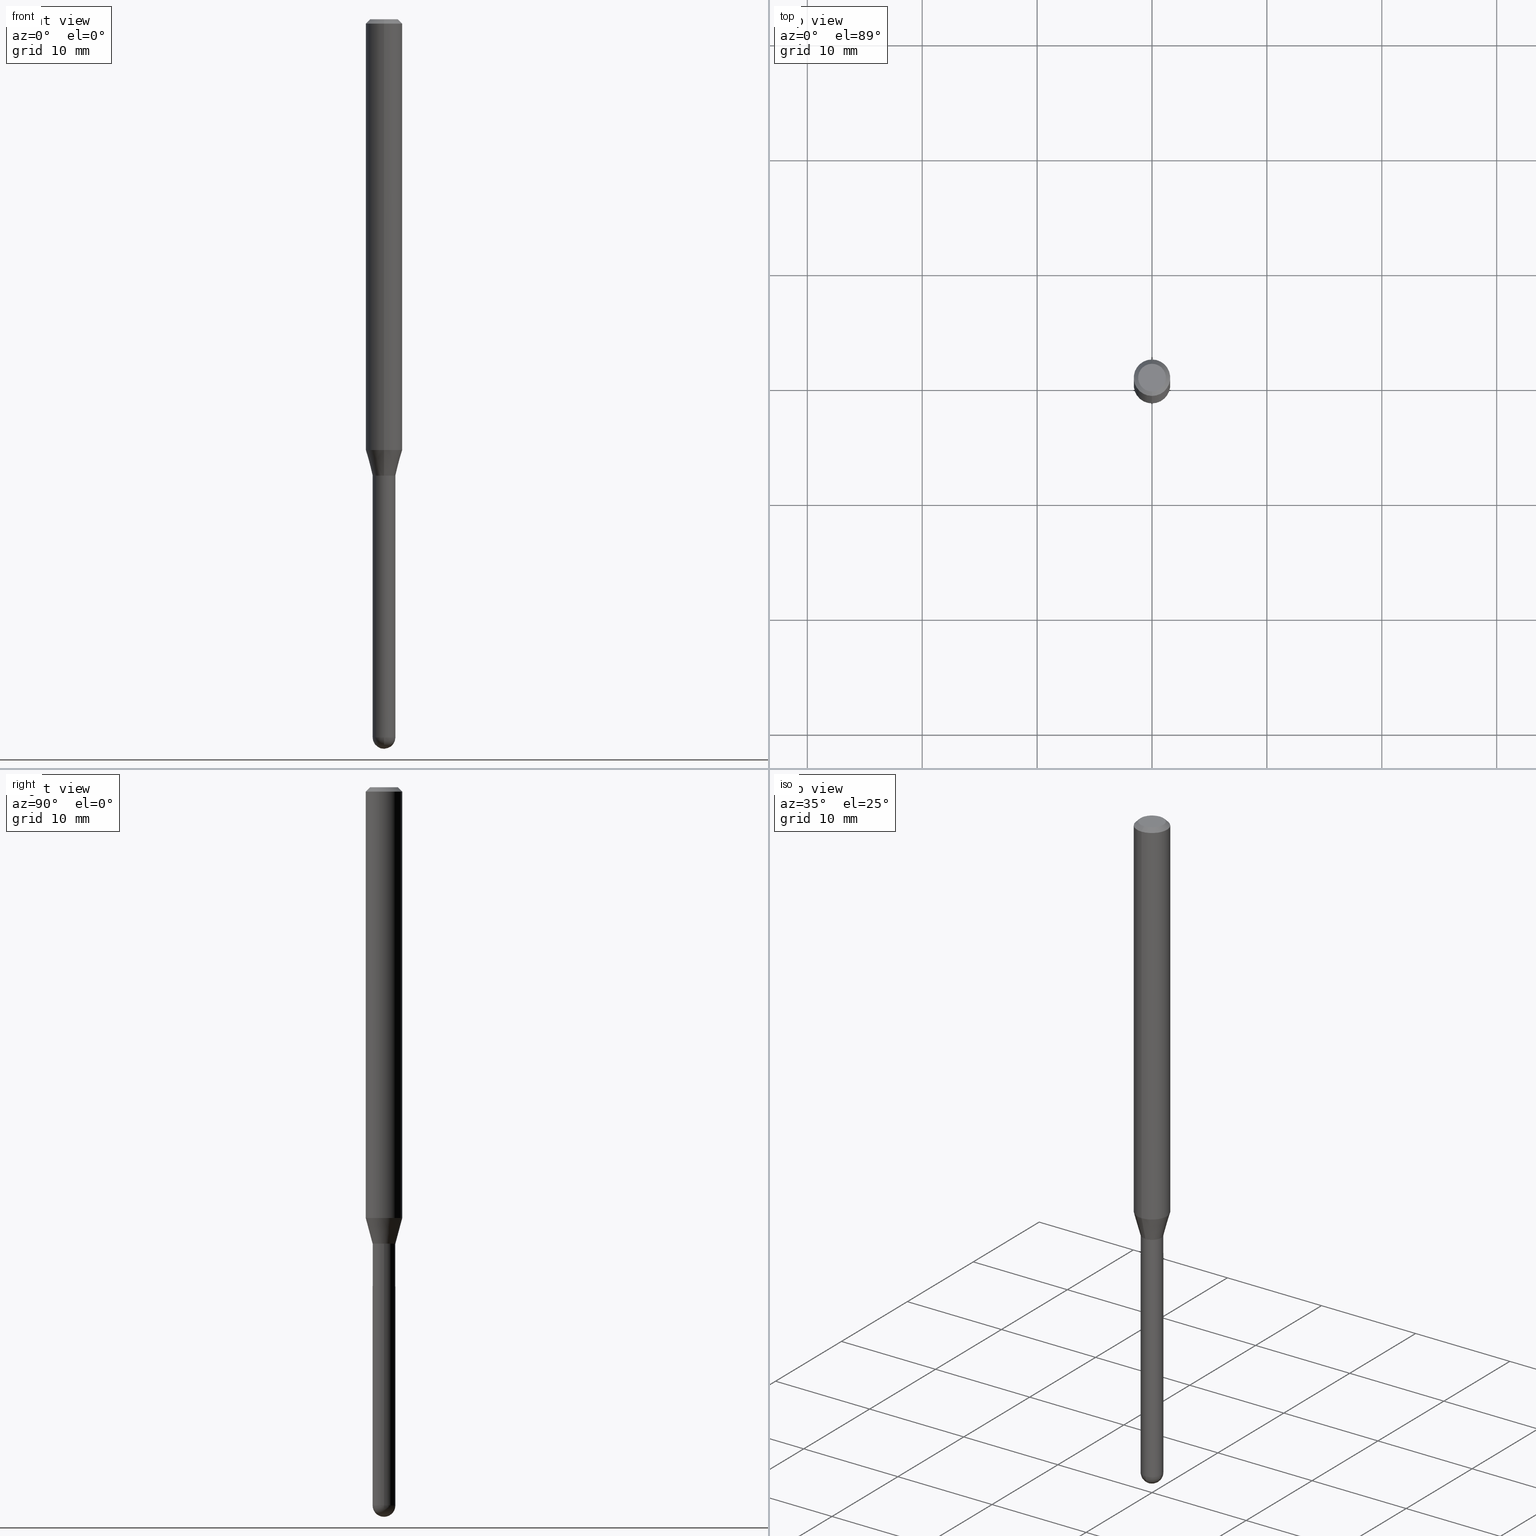
[diagram: canonical four-view strip — front | top / right | iso, engineering-drawing reading convention]
A machine part, canonical four-view strip (front | top / right | iso — engineering-drawing reading convention). The complete STEP part file that produces these views, byte-faithful:
ISO-10303-21;
HEADER;
FILE_DESCRIPTION (( 'STEP AP203' ),
    '1' );
FILE_NAME ('04527.STEP',
    '2024-03-08T20:30:31',
    ( '' ),
    ( '' ),
    'SwSTEP 2.0',
    'SolidWorks 2023',
    '' );
FILE_SCHEMA (( 'CONFIG_CONTROL_DESIGN' ));
ENDSEC;

DATA;
#1 = SHAPE_DEFINITION_REPRESENTATION ( #180, #27 ) ;
#2 = DIRECTION ( 'NONE',  ( -2.445504942116765828E-29, 3.491429590132323224E-15, 1.000000000000000000 ) ) ;
#3 = AXIS2_PLACEMENT_3D ( 'NONE', #323, #477, #251 ) ;
#4 = AXIS2_PLACEMENT_3D ( 'NONE', #241, #399, #414 ) ;
#5 = DATE_TIME_ROLE ( 'classification_date' ) ;
#6 = DIRECTION ( 'NONE',  ( 6.982962677686265922E-15, 1.000000000000000000, -3.483106191921935554E-15 ) ) ;
#7 = CC_DESIGN_PERSON_AND_ORGANIZATION_ASSIGNMENT ( #432, #200, ( #288 ) ) ;
#8 = VERTEX_POINT ( 'NONE', #229 ) ;
#9 = LINE ( 'NONE', #422, #312 ) ;
#10 = ORIENTED_EDGE ( 'NONE', *, *, #505, .F. ) ;
#11 = CIRCLE ( 'NONE', #407, 0.06250000000000000000 ) ;
#12 = VECTOR ( 'NONE', #408, 39.37007874015748854 ) ;
#13 = DIRECTION ( 'NONE',  ( 6.982962677686265922E-15, 1.000000000000000000, -3.483106191921935554E-15 ) ) ;
#14 = ORIENTED_EDGE ( 'NONE', *, *, #166, .F. ) ;
#15 = PLANE ( 'NONE',  #340 ) ;
#16 = FACE_OUTER_BOUND ( 'NONE', #375, .T. ) ;
#17 = VERTEX_POINT ( 'NONE', #283 ) ;
#18 = DIRECTION ( 'NONE',  ( -2.445468806185136597E-29, 3.491481338843145583E-15, 1.000000000000000000 ) ) ;
#19 = LINE ( 'NONE', #212, #290 ) ;
#20 = VERTEX_POINT ( 'NONE', #435 ) ;
#21 = CARTESIAN_POINT ( 'NONE',  ( -4.287811248607203282E-16, -0.06250000000000005551, -0.01499999999999984852 ) ) ;
#22 = DIRECTION ( 'NONE',  ( 1.000000000000000000, -6.982962677686265922E-15, 4.883557194083112340E-29 ) ) ;
#23 = LOCAL_TIME ( 15, 30, 31.00000000000000000, #349 ) ;
#24 = EDGE_LOOP ( 'NONE', ( #219, #339, #179, #371 ) ) ;
#25 = ADVANCED_FACE ( 'NONE', ( #398 ), #196, .T. ) ;
#26 = CARTESIAN_POINT ( 'NONE',  ( 2.771116669464776770E-16, 0.03899999999999459455, -1.563500000000000112 ) ) ;
#27 = ADVANCED_BREP_SHAPE_REPRESENTATION ( '04527', ( #205, #203, #43 ), #125 ) ;
#28 = DIRECTION ( 'NONE',  ( 1.000000000000000000, -6.982962677686283277E-15, 0.000000000000000000 ) ) ;
#29 = LINE ( 'NONE', #465, #324 ) ;
#30 = APPLICATION_PROTOCOL_DEFINITION ( 'international standard', 'config_control_design', 1994, #256 ) ;
#31 = CARTESIAN_POINT ( 'NONE',  ( 0.03899999999999999994, -5.733012358380444123E-15, -1.564000000000000057 ) ) ;
#32 = FACE_OUTER_BOUND ( 'NONE', #234, .T. ) ;
#33 = CC_DESIGN_PERSON_AND_ORGANIZATION_ASSIGNMENT ( #441, #46, ( #154 ) ) ;
#34 = DIRECTION ( 'NONE',  ( -2.445504942116765828E-29, 3.491429590132323224E-15, 1.000000000000000000 ) ) ;
#35 = ORIENTED_EDGE ( 'NONE', *, *, #95, .T. ) ;
#36 = VECTOR ( 'NONE', #302, 39.37007874015748143 ) ;
#37 = VECTOR ( 'NONE', #452, 39.37007874015748143 ) ;
#38 = DIRECTION ( 'NONE',  ( -6.982962677686266711E-15, -1.000000000000000000, 3.491429590132324013E-15 ) ) ;
#39 =( NAMED_UNIT ( * ) PLANE_ANGLE_UNIT ( ) SI_UNIT ( $, .RADIAN. ) );
#40 = ORIENTED_EDGE ( 'NONE', *, *, #217, .T. ) ;
#41 = EDGE_CURVE ( 'NONE', #315, #66, #311, .T. ) ;
#42 = CC_DESIGN_DATE_AND_TIME_ASSIGNMENT ( #245, #44, ( #288 ) ) ;
#43 = AXIS2_PLACEMENT_3D ( 'NONE', #357, #187, #508 ) ;
#44 = DATE_TIME_ROLE ( 'creation_date' ) ;
#45 = CALENDAR_DATE ( 2024, 8, 3 ) ;
#46 = PERSON_AND_ORGANIZATION_ROLE ( 'creator' ) ;
#47 = APPROVAL ( #252, 'UNSPECIFIED' ) ;
#48 = DIRECTION ( 'NONE',  ( -2.445468806185136877E-29, 3.491481338843145188E-15, 1.000000000000000000 ) ) ;
#49 = VECTOR ( 'NONE', #48, 39.37007874015748143 ) ;
#50 = ORIENTED_EDGE ( 'NONE', *, *, #224, .F. ) ;
#51 = ADVANCED_FACE ( 'NONE', ( #306 ), #474, .T. ) ;
#52 = CARTESIAN_POINT ( 'NONE',  ( 6.014963583493821915E-29, -8.597311697409657438E-15, -2.461000000000000298 ) ) ;
#53 = ORIENTED_EDGE ( 'NONE', *, *, #360, .T. ) ;
#54 = DIRECTION ( 'NONE',  ( 1.000000000000000000, -6.982962677686265922E-15, 4.876176775795935793E-29 ) ) ;
#55 = ADVANCED_FACE ( 'NONE', ( #163 ), #98, .F. ) ;
#56 = AXIS2_PLACEMENT_3D ( 'NONE', #499, #310, #80 ) ;
#57 = CC_DESIGN_APPROVAL ( #332, ( #288 ) ) ;
#58 = CARTESIAN_POINT ( 'NONE',  ( 2.771116669464747681E-16, 0.03899999999999418515, -1.564000000000000057 ) ) ;
#59 = EDGE_LOOP ( 'NONE', ( #423, #439, #453, #292, #76 ) ) ;
#60 = FACE_OUTER_BOUND ( 'NONE', #394, .T. ) ;
#61 = LINE ( 'NONE', #483, #12 ) ;
#62 = VERTEX_POINT ( 'NONE', #261 ) ;
#63 = DIRECTION ( 'NONE',  ( -2.445504942116765828E-29, 3.491429590132323224E-15, 1.000000000000000000 ) ) ;
#64 = CARTESIAN_POINT ( 'NONE',  ( 6.014963583493821915E-29, -8.597311697409657438E-15, -2.461000000000000298 ) ) ;
#65 = EDGE_CURVE ( 'NONE', #66, #315, #254, .T. ) ;
#66 = VERTEX_POINT ( 'NONE', #413 ) ;
#67 = DIRECTION ( 'NONE',  ( -6.982962677686265922E-15, -1.000000000000000000, 0.000000000000000000 ) ) ;
#68 =( NAMED_UNIT ( * ) SI_UNIT ( $, .STERADIAN. ) SOLID_ANGLE_UNIT ( ) );
#69 = VERTEX_POINT ( 'NONE', #185 ) ;
#70 = CARTESIAN_POINT ( 'NONE',  ( 4.440892098500625669E-16, 0.06250000000000000000, -2.182143493832702015E-16 ) ) ;
#71 = LINE ( 'NONE', #466, #171 ) ;
#72 = EDGE_LOOP ( 'NONE', ( #93, #383, #14, #213 ) ) ;
#73 = DIRECTION ( 'NONE',  ( -6.982962677686266711E-15, -1.000000000000000000, 0.000000000000000000 ) ) ;
#74 = CARTESIAN_POINT ( 'NONE',  ( 6.112004441198941993E-29, -8.731091408366202985E-15, -2.500000000000000000 ) ) ;
#75 = APPROVAL_DATE_TIME ( #469, #332 ) ;
#76 = ORIENTED_EDGE ( 'NONE', *, *, #65, .F. ) ;
#77 = CIRCLE ( 'NONE', #502, 0.04749999999999999362 ) ;
#78 = CIRCLE ( 'NONE', #418, 0.03899999999999999994 ) ;
#79 = CARTESIAN_POINT ( 'NONE',  ( 3.824769729470621710E-29, -5.460595878966953884E-15, -1.564000000000000057 ) ) ;
#80 = DIRECTION ( 'NONE',  ( -6.982962677686265922E-15, -1.000000000000000000, 3.483106191921935554E-15 ) ) ;
#81 = CARTESIAN_POINT ( 'NONE',  ( -2.771116669463784777E-16, -0.03900000000000854172, -2.460999999999999854 ) ) ;
#82 = CALENDAR_DATE ( 2024, 8, 3 ) ;
#83 = CARTESIAN_POINT ( 'NONE',  ( 3.668257413175165207E-31, -5.237144385198507171E-17, -0.01500000000000006710 ) ) ;
#84 = ADVANCED_FACE ( 'NONE', ( #384 ), #102, .T. ) ;
#85 = CIRCLE ( 'NONE', #351, 0.03899999999999999994 ) ;
#86 = CIRCLE ( 'NONE', #285, 0.03899999999999989586 ) ;
#87 = PERSON_AND_ORGANIZATION ( #280, #207 ) ;
#88 = EDGE_CURVE ( 'NONE', #108, #309, #428, .T. ) ;
#89 = PERSON_AND_ORGANIZATION ( #280, #207 ) ;
#90 = APPROVAL_DATE_TIME ( #443, #137 ) ;
#91 = CIRCLE ( 'NONE', #170, 0.03900000000000019423 ) ;
#92 = CC_DESIGN_SECURITY_CLASSIFICATION ( #264, ( #154 ) ) ;
#93 = ORIENTED_EDGE ( 'NONE', *, *, #404, .F. ) ;
#94 = DIRECTION ( 'NONE',  ( -2.445504942116765828E-29, 3.491429590132323224E-15, 1.000000000000000000 ) ) ;
#95 = EDGE_CURVE ( 'NONE', #8, #278, #342, .T. ) ;
#96 = VERTEX_POINT ( 'NONE', #181 ) ;
#97 = CARTESIAN_POINT ( 'NONE',  ( 3.824713212873553776E-29, -5.460676813950680100E-15, -1.564000000000000057 ) ) ;
#98 = CYLINDRICAL_SURFACE ( 'NONE', #3, 0.03899999999999992362 ) ;
#99 = EDGE_LOOP ( 'NONE', ( #211, #172, #379, #504 ) ) ;
#100 = CARTESIAN_POINT ( 'NONE',  ( 4.440892098500983121E-16, 0.06249999999999480971, -1.476296806022133312 ) ) ;
#101 = UNCERTAINTY_MEASURE_WITH_UNIT (LENGTH_MEASURE( 1.000000000000000082E-05 ), #155, 'distance_accuracy_value', 'NONE');
#102 = CONICAL_SURFACE ( 'NONE', #289, 0.03899999999999964606, 0.2617993877991575680 ) ;
#103 = AXIS2_PLACEMENT_3D ( 'NONE', #438, #277, #313 ) ;
#104 = VERTEX_POINT ( 'NONE', #100 ) ;
#105 = CYLINDRICAL_SURFACE ( 'NONE', #415, 0.03899999999999992362 ) ;
#106 = ADVANCED_FACE ( 'NONE', ( #388 ), #15, .F. ) ;
#107 = CARTESIAN_POINT ( 'NONE',  ( 3.610291135158322119E-29, -5.154386352363512854E-15, -1.476296806022132868 ) ) ;
#108 = VERTEX_POINT ( 'NONE', #26 ) ;
#109 = CARTESIAN_POINT ( 'NONE',  ( 3.824769729470621710E-29, -5.460595878966953884E-15, -1.564000000000000057 ) ) ;
#110 = DIMENSIONAL_EXPONENTS ( 1.000000000000000000, 0.000000000000000000, 0.000000000000000000, 0.000000000000000000, 0.000000000000000000, 0.000000000000000000, 0.000000000000000000 ) ;
#111 = FACE_OUTER_BOUND ( 'NONE', #270, .T. ) ;
#112 = DIRECTION ( 'NONE',  ( -2.445504942116765828E-29, 3.491429590132323224E-15, 1.000000000000000000 ) ) ;
#113 = CARTESIAN_POINT ( 'NONE',  ( 3.824769729470621710E-29, -5.460595878966953884E-15, -1.564000000000000057 ) ) ;
#114 = DIRECTION ( 'NONE',  ( -2.445504942116765828E-29, 3.491429590132323224E-15, 1.000000000000000000 ) ) ;
#115 = AXIS2_PLACEMENT_3D ( 'NONE', #83, #361, #6 ) ;
#116 = ORIENTED_EDGE ( 'NONE', *, *, #348, .T. ) ;
#117 = FACE_OUTER_BOUND ( 'NONE', #295, .T. ) ;
#118 = CARTESIAN_POINT ( 'NONE',  ( 6.014963583493821915E-29, -8.597311697409657438E-15, -2.461000000000000298 ) ) ;
#119 = CYLINDRICAL_SURFACE ( 'NONE', #103, 0.03899999999999999994 ) ;
#120 = DIRECTION ( 'NONE',  ( -2.445504942116765828E-29, 3.491429590132323224E-15, 1.000000000000000000 ) ) ;
#121 = ORIENTED_EDGE ( 'NONE', *, *, #224, .T. ) ;
#122 = DIRECTION ( 'NONE',  ( -6.982962677686265922E-15, -1.000000000000000000, 3.491429590132323224E-15 ) ) ;
#123 = ORIENTED_EDGE ( 'NONE', *, *, #352, .T. ) ;
#124 = AXIS2_PLACEMENT_3D ( 'NONE', #354, #198, #506 ) ;
#125 =( GEOMETRIC_REPRESENTATION_CONTEXT ( 3 ) GLOBAL_UNCERTAINTY_ASSIGNED_CONTEXT ( ( #101 ) ) GLOBAL_UNIT_ASSIGNED_CONTEXT ( ( #155, #39, #68 ) ) REPRESENTATION_CONTEXT ( 'NONE', 'WORKASPACE' ) );
#126 = CYLINDRICAL_SURFACE ( 'NONE', #206, 0.06250000000000000000 ) ;
#127 = PERSON_AND_ORGANIZATION ( #280, #207 ) ;
#128 = ADVANCED_FACE ( 'NONE', ( #347 ), #374, .T. ) ;
#129 = VECTOR ( 'NONE', #143, 39.37007874015748854 ) ;
#130 = COORDINATED_UNIVERSAL_TIME_OFFSET ( 5, 0, .BEHIND. ) ;
#131 = EDGE_LOOP ( 'NONE', ( #333, #327, #433, #369 ) ) ;
#132 = DIRECTION ( 'NONE',  ( -6.982962677686265922E-15, -1.000000000000000000, 3.491429590132323224E-15 ) ) ;
#133 = APPLICATION_CONTEXT ( 'configuration controlled 3d designs of mechanical parts and assemblies' ) ;
#134 = ADVANCED_FACE ( 'NONE', ( #60 ), #105, .F. ) ;
#135 = CLOSED_SHELL ( 'NONE', ( #486, #248, #328, #25, #175 ) ) ;
#136 = CIRCLE ( 'NONE', #199, 0.03899999999999964606 ) ;
#137 = APPROVAL ( #364, 'UNSPECIFIED' ) ;
#138 = DIRECTION ( 'NONE',  ( -7.105427357601000281E-15, -1.000000000000000000, 0.000000000000000000 ) ) ;
#139 = EDGE_LOOP ( 'NONE', ( #184, #460, #410, #158 ) ) ;
#140 = DIRECTION ( 'NONE',  ( -2.445504942116765828E-29, 3.491429590132323224E-15, 1.000000000000000000 ) ) ;
#141 = ORIENTED_EDGE ( 'NONE', *, *, #41, .F. ) ;
#142 = CARTESIAN_POINT ( 'NONE',  ( 0.000000000000000000, 0.000000000000000000, 0.000000000000000000 ) ) ;
#143 = DIRECTION ( 'NONE',  ( 1.839019923739650408E-15, 0.2588190451025319527, 0.9659258262890650926 ) ) ;
#144 = ORIENTED_EDGE ( 'NONE', *, *, #467, .F. ) ;
#145 = CC_DESIGN_PERSON_AND_ORGANIZATION_ASSIGNMENT ( #127, #291, ( #154 ) ) ;
#146 = DIRECTION ( 'NONE',  ( -6.982962677686266711E-15, -1.000000000000000000, 3.491429590132324013E-15 ) ) ;
#147 = AXIS2_PLACEMENT_3D ( 'NONE', #359, #242, #356 ) ;
#148 = ORIENTED_EDGE ( 'NONE', *, *, #326, .T. ) ;
#149 = DIRECTION ( 'NONE',  ( -2.445468806185136597E-29, 3.491481338843145583E-15, 1.000000000000000000 ) ) ;
#150 = CARTESIAN_POINT ( 'NONE',  ( 3.824769729470621149E-29, -5.460595878966953095E-15, -1.563999999999999835 ) ) ;
#151 = PERSON_AND_ORGANIZATION_ROLE ( 'design_owner' ) ;
#152 = DIRECTION ( 'NONE',  ( -6.982962677686265922E-15, -1.000000000000000000, 3.491429590132323224E-15 ) ) ;
#153 = EDGE_CURVE ( 'NONE', #412, #309, #29, .T. ) ;
#154 = PRODUCT_DEFINITION_FORMATION_WITH_SPECIFIED_SOURCE ( 'ANY', '', #168, .NOT_KNOWN. ) ;
#155 =( CONVERSION_BASED_UNIT ( 'INCH', #392 ) LENGTH_UNIT ( ) NAMED_UNIT ( #110 ) );
#156 = ORIENTED_EDGE ( 'NONE', *, *, #317, .T. ) ;
#157 = LINE ( 'NONE', #473, #449 ) ;
#158 = ORIENTED_EDGE ( 'NONE', *, *, #237, .T. ) ;
#159 = DIRECTION ( 'NONE',  ( -6.982962677686265922E-15, -1.000000000000000000, 0.000000000000000000 ) ) ;
#160 = AXIS2_PLACEMENT_3D ( 'NONE', #109, #287, #159 ) ;
#161 = AXIS2_PLACEMENT_3D ( 'NONE', #353, #233, #430 ) ;
#162 = DIRECTION ( 'NONE',  ( 6.982962677686265922E-15, 1.000000000000000000, 0.000000000000000000 ) ) ;
#163 = FACE_OUTER_BOUND ( 'NONE', #139, .T. ) ;
#164 = VECTOR ( 'NONE', #337, 39.37007874015748143 ) ;
#165 = CIRCLE ( 'NONE', #503, 0.03899999999999989586 ) ;
#166 = EDGE_CURVE ( 'NONE', #176, #243, #481, .T. ) ;
#167 = DIRECTION ( 'NONE',  ( -2.445504942116766108E-29, 3.491429590132322830E-15, 1.000000000000000000 ) ) ;
#168 = PRODUCT ( '04527', '04527', '', ( #426 ) ) ;
#169 = ORIENTED_EDGE ( 'NONE', *, *, #348, .F. ) ;
#170 = AXIS2_PLACEMENT_3D ( 'NONE', #362, #246, #286 ) ;
#171 = VECTOR ( 'NONE', #228, 39.37007874015748854 ) ;
#172 = ORIENTED_EDGE ( 'NONE', *, *, #404, .T. ) ;
#173 = DIRECTION ( 'NONE',  ( -6.982962677686265922E-15, -1.000000000000000000, 3.491429590132322830E-15 ) ) ;
#174 = DIRECTION ( 'NONE',  ( -1.000000000000000000, 6.982962677686265922E-15, -4.876176775795935793E-29 ) ) ;
#175 = ADVANCED_FACE ( 'NONE', ( #488 ), #498, .T. ) ;
#176 = VERTEX_POINT ( 'NONE', #429 ) ;
#177 = CARTESIAN_POINT ( 'NONE',  ( 3.606004383982868113E-16, 0.03899999999999418515, -1.564000000000000057 ) ) ;
#178 = DIRECTION ( 'NONE',  ( -1.807323732225379443E-15, -0.2588190451025252359, 0.9659258262890670910 ) ) ;
#179 = ORIENTED_EDGE ( 'NONE', *, *, #360, .F. ) ;
#180 = PRODUCT_DEFINITION_SHAPE ( 'NONE', 'NONE',  #288 ) ;
#181 = CARTESIAN_POINT ( 'NONE',  ( 2.723355444298241737E-16, 0.03899999999999134714, -2.460999999999999854 ) ) ;
#182 = AXIS2_PLACEMENT_3D ( 'NONE', #118, #250, #162 ) ;
#183 = LOCAL_TIME ( 15, 30, 31.00000000000000000, #405 ) ;
#184 = ORIENTED_EDGE ( 'NONE', *, *, #391, .F. ) ;
#185 = CARTESIAN_POINT ( 'NONE',  ( 2.753353101070776221E-16, 0.03849999999999453165, -1.563999999999999835 ) ) ;
#186 = ADVANCED_FACE ( 'NONE', ( #111 ), #401, .T. ) ;
#187 = DIRECTION ( 'NONE',  ( 0.000000000000000000, 0.000000000000000000, 1.000000000000000000 ) ) ;
#188 = ORIENTED_EDGE ( 'NONE', *, *, #88, .F. ) ;
#189 = CARTESIAN_POINT ( 'NONE',  ( 3.610291135158322119E-29, -5.154386352363512854E-15, -1.476296806022132868 ) ) ;
#190 = CONICAL_SURFACE ( 'NONE', #442, 0.03849999999999999256, 0.7853981633980202659 ) ;
#191 = DIRECTION ( 'NONE',  ( -6.982962677686265922E-15, -1.000000000000000000, 0.000000000000000000 ) ) ;
#192 = AXIS2_PLACEMENT_3D ( 'NONE', #500, #495, #305 ) ;
#193 = LOCAL_TIME ( 15, 30, 31.00000000000000000, #253 ) ;
#194 = ORIENTED_EDGE ( 'NONE', *, *, #153, .F. ) ;
#195 = CARTESIAN_POINT ( 'NONE',  ( -2.688440630908829534E-16, -0.03850000000000546041, -1.563999999999999835 ) ) ;
#196 = SPHERICAL_SURFACE ( 'NONE', #124, 0.03899999999999989586 ) ;
#197 = CARTESIAN_POINT ( 'NONE',  ( 1.601871572920228491E-45, -2.286980374876892239E-31, -6.550269211616027646E-17 ) ) ;
#198 = DIRECTION ( 'NONE',  ( -1.000000000000000000, 6.982962677686265922E-15, -4.883557194083112340E-29 ) ) ;
#199 = AXIS2_PLACEMENT_3D ( 'NONE', #79, #34, #191 ) ;
#200 = PERSON_AND_ORGANIZATION_ROLE ( 'creator' ) ;
#201 = EDGE_CURVE ( 'NONE', #20, #96, #85, .T. ) ;
#202 = SECURITY_CLASSIFICATION_LEVEL ( 'unclassified' ) ;
#203 = MANIFOLD_SOLID_BREP ( 'Body-Move/Copy2[2]', #236 ) ;
#204 = CALENDAR_DATE ( 2024, 8, 3 ) ;
#205 = MANIFOLD_SOLID_BREP ( 'Body-Move/Copy2[1]', #135 ) ;
#206 = AXIS2_PLACEMENT_3D ( 'NONE', #403, #2, #132 ) ;
#207 = ORGANIZATION ( 'UNSPECIFIED', 'UNSPECIFIED', '' ) ;
#208 = DATE_AND_TIME ( #82, #343 ) ;
#209 = VERTEX_POINT ( 'NONE', #177 ) ;
#210 = DIRECTION ( 'NONE',  ( -2.445468806185136877E-29, 3.491481338843145188E-15, 1.000000000000000000 ) ) ;
#211 = ORIENTED_EDGE ( 'NONE', *, *, #421, .F. ) ;
#212 = CARTESIAN_POINT ( 'NONE',  ( -2.723355444297236925E-16, -0.03900000000000511391, -1.564000000000000057 ) ) ;
#213 = ORIENTED_EDGE ( 'NONE', *, *, #511, .F. ) ;
#214 = DIRECTION ( 'NONE',  ( -6.982962677686266711E-15, -1.000000000000000000, 0.000000000000000000 ) ) ;
#215 = AXIS2_PLACEMENT_3D ( 'NONE', #464, #380, #454 ) ;
#216 = VECTOR ( 'NONE', #210, 39.37007874015748143 ) ;
#217 = EDGE_CURVE ( 'NONE', #104, #62, #307, .T. ) ;
#218 = CARTESIAN_POINT ( 'NONE',  ( 4.364351673553919652E-16, 0.06249999999999995143, -0.01500000000000028394 ) ) ;
#219 = ORIENTED_EDGE ( 'NONE', *, *, #450, .T. ) ;
#220 = CARTESIAN_POINT ( 'NONE',  ( -0.03899999999999999994, 2.771116669464390721E-16, -1.918384685199413078E-30 ) ) ;
#221 = ORIENTED_EDGE ( 'NONE', *, *, #65, .T. ) ;
#222 = DIRECTION ( 'NONE',  ( -2.445504942116765828E-29, 3.491429590132323224E-15, 1.000000000000000000 ) ) ;
#223 = DIRECTION ( 'NONE',  ( -6.982962677686265922E-15, -1.000000000000000000, 3.483106191921935554E-15 ) ) ;
#224 = EDGE_CURVE ( 'NONE', #225, #8, #77, .T. ) ;
#225 = VERTEX_POINT ( 'NONE', #424 ) ;
#226 = CARTESIAN_POINT ( 'NONE',  ( 3.824769729470621710E-29, -5.460595878966953884E-15, -1.564000000000000057 ) ) ;
#227 = CIRCLE ( 'NONE', #239, 0.04749999999999999362 ) ;
#228 = DIRECTION ( 'NONE',  ( 5.024295867790934632E-15, 0.7071067811869542474, 0.7071067811861405650 ) ) ;
#229 = CARTESIAN_POINT ( 'NONE',  ( -3.773273898774340269E-16, -0.04749999999999999362, 1.003402134151250752E-16 ) ) ;
#230 = EDGE_CURVE ( 'NONE', #448, #69, #458, .T. ) ;
#231 = DIRECTION ( 'NONE',  ( -2.445504942116765828E-29, 3.491429590132323224E-15, 1.000000000000000000 ) ) ;
#232 = ORIENTED_EDGE ( 'NONE', *, *, #41, .T. ) ;
#233 = DIRECTION ( 'NONE',  ( -2.445468806185136597E-29, 3.491481338843145583E-15, 1.000000000000000000 ) ) ;
#234 = EDGE_LOOP ( 'NONE', ( #417, #156, #497, #427 ) ) ;
#235 = FACE_OUTER_BOUND ( 'NONE', #386, .T. ) ;
#236 = CLOSED_SHELL ( 'NONE', ( #134, #186, #51, #446, #84, #128, #265, #440, #320, #106, #314, #55 ) ) ;
#237 = EDGE_CURVE ( 'NONE', #309, #108, #91, .T. ) ;
#238 =( LENGTH_UNIT ( ) NAMED_UNIT ( * ) SI_UNIT ( $, .METRE. ) );
#239 = AXIS2_PLACEMENT_3D ( 'NONE', #197, #114, #38 ) ;
#240 = ORIENTED_EDGE ( 'NONE', *, *, #511, .T. ) ;
#241 = CARTESIAN_POINT ( 'NONE',  ( 3.316907271900976096E-16, 0.04749999999999999362, -1.985942515893654591E-16 ) ) ;
#242 = DIRECTION ( 'NONE',  ( -2.445504942116765828E-29, 3.491429590132323224E-15, 1.000000000000000000 ) ) ;
#243 = VERTEX_POINT ( 'NONE', #81 ) ;
#244 = CARTESIAN_POINT ( 'NONE',  ( -2.723355444297284257E-16, -0.03900000000000579392, -1.563500000000000112 ) ) ;
#245 = DATE_AND_TIME ( #249, #193 ) ;
#246 = DIRECTION ( 'NONE',  ( -2.445504942116765828E-29, 3.491429590132323224E-15, 1.000000000000000000 ) ) ;
#247 = AXIS2_PLACEMENT_3D ( 'NONE', #107, #267, #378 ) ;
#248 = ADVANCED_FACE ( 'NONE', ( #400 ), #509, .T. ) ;
#249 = CALENDAR_DATE ( 2024, 8, 3 ) ;
#250 = DIRECTION ( 'NONE',  ( -1.000000000000000000, 6.982962677686265922E-15, -4.883557194083112340E-29 ) ) ;
#251 = DIRECTION ( 'NONE',  ( -6.982962677686265922E-15, -1.000000000000000000, 3.491429590132323224E-15 ) ) ;
#252 = APPROVAL_STATUS ( 'not_yet_approved' ) ;
#253 = COORDINATED_UNIVERSAL_TIME_OFFSET ( 5, 0, .BEHIND. ) ;
#254 = CIRCLE ( 'NONE', #416, 0.03899999999999999994 ) ;
#255 = EDGE_LOOP ( 'NONE', ( #262, #50, #148, #258 ) ) ;
#256 = APPLICATION_CONTEXT ( 'configuration controlled 3d designs of mechanical parts and assemblies' ) ;
#257 = FACE_OUTER_BOUND ( 'NONE', #299, .T. ) ;
#258 = ORIENTED_EDGE ( 'NONE', *, *, #365, .T. ) ;
#259 = LINE ( 'NONE', #58, #129 ) ;
#260 = ORIENTED_EDGE ( 'NONE', *, *, #88, .T. ) ;
#261 = CARTESIAN_POINT ( 'NONE',  ( 4.440892098500989038E-16, 0.06249999999999995143, -0.01500000000000028394 ) ) ;
#262 = ORIENTED_EDGE ( 'NONE', *, *, #95, .F. ) ;
#263 = DIRECTION ( 'NONE',  ( -6.982962677686266711E-15, -1.000000000000000000, 0.000000000000000000 ) ) ;
#264 = SECURITY_CLASSIFICATION ( '', '', #202 ) ;
#265 = ADVANCED_FACE ( 'NONE', ( #32 ), #126, .T. ) ;
#266 = APPROVAL_PERSON_ORGANIZATION ( #87, #47, #512 ) ;
#267 = DIRECTION ( 'NONE',  ( -2.445504942116765828E-29, 3.491429590132323224E-15, 1.000000000000000000 ) ) ;
#268 = ORIENTED_EDGE ( 'NONE', *, *, #355, .F. ) ;
#269 = DIRECTION ( 'NONE',  ( -2.445468806185136597E-29, 3.491481338843145583E-15, 1.000000000000000000 ) ) ;
#270 = EDGE_LOOP ( 'NONE', ( #336, #494, #484, #169 ) ) ;
#271 = DIRECTION ( 'NONE',  ( 1.000000000000000000, -6.982962677686258033E-15, 0.000000000000000000 ) ) ;
#272 = FACE_OUTER_BOUND ( 'NONE', #297, .T. ) ;
#273 = EDGE_CURVE ( 'NONE', #20, #315, #445, .T. ) ;
#274 = ORIENTED_EDGE ( 'NONE', *, *, #296, .F. ) ;
#275 = DIRECTION ( 'NONE',  ( -2.445504942116765828E-29, 3.491429590132323224E-15, 1.000000000000000000 ) ) ;
#276 = AXIS2_PLACEMENT_3D ( 'NONE', #316, #472, #358 ) ;
#277 = DIRECTION ( 'NONE',  ( -2.445468806185136597E-29, 3.491481338843145583E-15, 1.000000000000000000 ) ) ;
#278 = VERTEX_POINT ( 'NONE', #367 ) ;
#279 = PERSON_AND_ORGANIZATION ( #280, #207 ) ;
#280 = PERSON ( 'UNSPECIFIED', 'UNSPECIFIED', 'UNSPECIFIED', ('UNSPECIFIED'), ('UNSPECIFIED'), ('UNSPECIFIED') ) ;
#281 = EDGE_CURVE ( 'NONE', #209, #412, #387, .T. ) ;
#282 = APPLICATION_PROTOCOL_DEFINITION ( 'international standard', 'config_control_design', 1994, #133 ) ;
#283 = CARTESIAN_POINT ( 'NONE',  ( -4.364351673553557762E-16, -0.06250000000000519029, -1.476296806022132646 ) ) ;
#284 = DIRECTION ( 'NONE',  ( -2.445468806185136597E-29, 3.491481338843145583E-15, 1.000000000000000000 ) ) ;
#285 = AXIS2_PLACEMENT_3D ( 'NONE', #64, #22, #485 ) ;
#286 = DIRECTION ( 'NONE',  ( -6.982962677686266711E-15, -1.000000000000000000, 0.000000000000000000 ) ) ;
#287 = DIRECTION ( 'NONE',  ( -2.445504942116765828E-29, 3.491429590132323224E-15, 1.000000000000000000 ) ) ;
#288 = PRODUCT_DEFINITION ( 'UNKNOWN', '', #154, #420 ) ;
#289 = AXIS2_PLACEMENT_3D ( 'NONE', #113, #377, #67 ) ;
#290 = VECTOR ( 'NONE', #178, 39.37007874015748143 ) ;
#291 = PERSON_AND_ORGANIZATION_ROLE ( 'design_supplier' ) ;
#292 = ORIENTED_EDGE ( 'NONE', *, *, #273, .T. ) ;
#293 = EDGE_CURVE ( 'NONE', #17, #278, #157, .T. ) ;
#294 = CIRCLE ( 'NONE', #56, 0.06250000000000000000 ) ;
#295 = EDGE_LOOP ( 'NONE', ( #10, #490, #116, #188 ) ) ;
#296 = EDGE_CURVE ( 'NONE', #278, #62, #294, .T. ) ;
#297 = EDGE_LOOP ( 'NONE', ( #240, #123, #141, #350, #331 ) ) ;
#298 = CYLINDRICAL_SURFACE ( 'NONE', #459, 0.06250000000000000000 ) ;
#299 = EDGE_LOOP ( 'NONE', ( #232, #221 ) ) ;
#300 = CARTESIAN_POINT ( 'NONE',  ( 6.018298732021620914E-29, -8.592535574892981353E-15, -2.460999999999999854 ) ) ;
#301 = ORIENTED_EDGE ( 'NONE', *, *, #281, .F. ) ;
#302 = DIRECTION ( 'NONE',  ( -4.851104656540964275E-15, -0.7071067811865500152, -0.7071067811865450192 ) ) ;
#303 = CIRCLE ( 'NONE', #510, 0.06250000000000000000 ) ;
#304 = EDGE_LOOP ( 'NONE', ( #144, #35, #444, #455 ) ) ;
#305 = DIRECTION ( 'NONE',  ( -6.982962677686265922E-15, -1.000000000000000000, 0.000000000000000000 ) ) ;
#306 = FACE_OUTER_BOUND ( 'NONE', #304, .T. ) ;
#307 = LINE ( 'NONE', #70, #164 ) ;
#308 = APPROVAL_STATUS ( 'not_yet_approved' ) ;
#309 = VERTEX_POINT ( 'NONE', #244 ) ;
#310 = DIRECTION ( 'NONE',  ( -2.445504942116765828E-29, 3.491429590132323224E-15, 1.000000000000000000 ) ) ;
#311 = CIRCLE ( 'NONE', #276, 0.03899999999999999994 ) ;
#312 = VECTOR ( 'NONE', #167, 39.37007874015748143 ) ;
#313 = DIRECTION ( 'NONE',  ( 1.000000000000000000, -6.982962677686265922E-15, 4.876176775795935793E-29 ) ) ;
#314 = ADVANCED_FACE ( 'NONE', ( #117 ), #190, .T. ) ;
#315 = VERTEX_POINT ( 'NONE', #31 ) ;
#316 = CARTESIAN_POINT ( 'NONE',  ( 3.824713212873553776E-29, -5.460676813950680100E-15, -1.564000000000000057 ) ) ;
#317 = EDGE_CURVE ( 'NONE', #104, #17, #11, .T. ) ;
#318 = AXIS2_PLACEMENT_3D ( 'NONE', #150, #222, #263 ) ;
#319 = CC_DESIGN_APPROVAL ( #47, ( #264 ) ) ;
#320 = ADVANCED_FACE ( 'NONE', ( #235 ), #395, .F. ) ;
#321 = COORDINATED_UNIVERSAL_TIME_OFFSET ( 5, 0, .BEHIND. ) ;
#322 = PERSON_AND_ORGANIZATION ( #280, #207 ) ;
#323 = CARTESIAN_POINT ( 'NONE',  ( 0.000000000000000000, 0.000000000000000000, 0.000000000000000000 ) ) ;
#324 = VECTOR ( 'NONE', #334, 39.37007874015748143 ) ;
#325 = CONICAL_SURFACE ( 'NONE', #366, 0.06250000000000000000, 0.7853981633974483900 ) ;
#326 = EDGE_CURVE ( 'NONE', #225, #62, #462, .T. ) ;
#327 = ORIENTED_EDGE ( 'NONE', *, *, #281, .T. ) ;
#328 = ADVANCED_FACE ( 'NONE', ( #257 ), #385, .F. ) ;
#329 = CARTESIAN_POINT ( 'NONE',  ( -2.723355444297236925E-16, -0.03900000000000511391, -1.564000000000000057 ) ) ;
#330 = AXIS2_PLACEMENT_3D ( 'NONE', #419, #63, #214 ) ;
#331 = ORIENTED_EDGE ( 'NONE', *, *, #201, .T. ) ;
#332 = APPROVAL ( #308, 'UNSPECIFIED' ) ;
#333 = ORIENTED_EDGE ( 'NONE', *, *, #341, .F. ) ;
#334 = DIRECTION ( 'NONE',  ( -2.445504942116766108E-29, 3.491429590132322830E-15, 1.000000000000000000 ) ) ;
#335 = DIRECTION ( 'NONE',  ( -1.000000000000000000, 7.105427357601001070E-15, -4.926315508542082329E-29 ) ) ;
#336 = ORIENTED_EDGE ( 'NONE', *, *, #230, .T. ) ;
#337 = DIRECTION ( 'NONE',  ( -2.445504942116766108E-29, 3.491429590132322830E-15, 1.000000000000000000 ) ) ;
#338 = FACE_OUTER_BOUND ( 'NONE', #255, .T. ) ;
#339 = ORIENTED_EDGE ( 'NONE', *, *, #341, .T. ) ;
#340 = AXIS2_PLACEMENT_3D ( 'NONE', #226, #461, #173 ) ;
#341 = EDGE_CURVE ( 'NONE', #209, #104, #259, .T. ) ;
#342 = LINE ( 'NONE', #21, #36 ) ;
#343 = LOCAL_TIME ( 15, 30, 31.00000000000000000, #130 ) ;
#344 = EDGE_LOOP ( 'NONE', ( #487, #268 ) ) ;
#345 = CARTESIAN_POINT ( 'NONE',  ( 0.000000000000000000, 0.000000000000000000, 0.000000000000000000 ) ) ;
#346 = PERSON_AND_ORGANIZATION ( #280, #207 ) ;
#347 = FACE_OUTER_BOUND ( 'NONE', #131, .T. ) ;
#348 = EDGE_CURVE ( 'NONE', #448, #309, #61, .T. ) ;
#349 = COORDINATED_UNIVERSAL_TIME_OFFSET ( 5, 0, .BEHIND. ) ;
#350 = ORIENTED_EDGE ( 'NONE', *, *, #273, .F. ) ;
#351 = AXIS2_PLACEMENT_3D ( 'NONE', #300, #18, #456 ) ;
#352 = EDGE_CURVE ( 'NONE', #176, #66, #496, .T. ) ;
#353 = CARTESIAN_POINT ( 'NONE',  ( 6.018298732021620914E-29, -8.592535574892981353E-15, -2.460999999999999854 ) ) ;
#354 = CARTESIAN_POINT ( 'NONE',  ( 6.014963583493821915E-29, -8.597311697409657438E-15, -2.461000000000000298 ) ) ;
#355 = EDGE_CURVE ( 'NONE', #69, #448, #396, .T. ) ;
#356 = DIRECTION ( 'NONE',  ( -6.982962677686266711E-15, -1.000000000000000000, 0.000000000000000000 ) ) ;
#357 = CARTESIAN_POINT ( 'NONE',  ( 0.000000000000000000, 0.000000000000000000, 0.000000000000000000 ) ) ;
#358 = DIRECTION ( 'NONE',  ( 1.000000000000000000, -6.982962677686258033E-15, 0.000000000000000000 ) ) ;
#359 = CARTESIAN_POINT ( 'NONE',  ( 3.824769729470621149E-29, -5.460595878966953095E-15, -1.563999999999999835 ) ) ;
#360 = EDGE_CURVE ( 'NONE', #17, #104, #389, .T. ) ;
#361 = DIRECTION ( 'NONE',  ( 2.445504942116765828E-29, -3.491429590132323224E-15, -1.000000000000000000 ) ) ;
#362 = CARTESIAN_POINT ( 'NONE',  ( 3.823546976999563178E-29, -5.458850164171887659E-15, -1.563500000000000112 ) ) ;
#363 = PERSON_AND_ORGANIZATION_ROLE ( 'classification_officer' ) ;
#364 = APPROVAL_STATUS ( 'not_yet_approved' ) ;
#365 = EDGE_CURVE ( 'NONE', #62, #278, #303, .T. ) ;
#366 = AXIS2_PLACEMENT_3D ( 'NONE', #492, #373, #13 ) ;
#367 = CARTESIAN_POINT ( 'NONE',  ( -4.364351673553912750E-16, -0.06250000000000005551, -0.01499999999999984852 ) ) ;
#368 = DATE_AND_TIME ( #204, #493 ) ;
#369 = ORIENTED_EDGE ( 'NONE', *, *, #317, .F. ) ;
#370 = CARTESIAN_POINT ( 'NONE',  ( 2.723355444298025786E-16, 0.03899999999999453210, -1.564000000000000057 ) ) ;
#371 = ORIENTED_EDGE ( 'NONE', *, *, #437, .F. ) ;
#372 = CC_DESIGN_DATE_AND_TIME_ASSIGNMENT ( #208, #5, ( #264 ) ) ;
#373 = DIRECTION ( 'NONE',  ( 2.445504942116765828E-29, -3.491429590132323224E-15, -1.000000000000000000 ) ) ;
#374 = CONICAL_SURFACE ( 'NONE', #192, 0.03899999999999964606, 0.2617993877991575680 ) ;
#375 = EDGE_LOOP ( 'NONE', ( #53, #40, #274, #470 ) ) ;
#376 = CIRCLE ( 'NONE', #161, 0.03899999999999999994 ) ;
#377 = DIRECTION ( 'NONE',  ( -2.445504942116765828E-29, 3.491429590132323224E-15, 1.000000000000000000 ) ) ;
#378 = DIRECTION ( 'NONE',  ( -6.982962677686265922E-15, -1.000000000000000000, 4.370956789862821150E-15 ) ) ;
#379 = ORIENTED_EDGE ( 'NONE', *, *, #201, .F. ) ;
#380 = DIRECTION ( 'NONE',  ( -2.445468806185136597E-29, 3.491481338843145583E-15, 1.000000000000000000 ) ) ;
#381 = DIRECTION ( 'NONE',  ( -6.982962677686266711E-15, -1.000000000000000000, 0.000000000000000000 ) ) ;
#382 = CC_DESIGN_PERSON_AND_ORGANIZATION_ASSIGNMENT ( #346, #151, ( #168 ) ) ;
#383 = ORIENTED_EDGE ( 'NONE', *, *, #421, .T. ) ;
#384 = FACE_OUTER_BOUND ( 'NONE', #24, .T. ) ;
#385 = PLANE ( 'NONE',  #402 ) ;
#386 = EDGE_LOOP ( 'NONE', ( #121, #425 ) ) ;
#387 = CIRCLE ( 'NONE', #160, 0.03899999999999964606 ) ;
#388 = FACE_OUTER_BOUND ( 'NONE', #344, .T. ) ;
#389 = CIRCLE ( 'NONE', #247, 0.06250000000000000000 ) ;
#390 = CARTESIAN_POINT ( 'NONE',  ( 6.018298732021620914E-29, -8.592535574892981353E-15, -2.460999999999999854 ) ) ;
#391 = EDGE_CURVE ( 'NONE', #209, #108, #9, .T. ) ;
#392 = LENGTH_MEASURE_WITH_UNIT ( LENGTH_MEASURE( 0.02539999999999999897 ), #238 );
#393 = APPROVAL_ROLE ( '' ) ;
#394 = EDGE_LOOP ( 'NONE', ( #301, #451, #260, #194 ) ) ;
#395 = PLANE ( 'NONE',  #4 ) ;
#396 = CIRCLE ( 'NONE', #468, 0.03849999999999999256 ) ;
#397 = CARTESIAN_POINT ( 'NONE',  ( 0.000000000000000000, 0.000000000000000000, 0.000000000000000000 ) ) ;
#398 = FACE_OUTER_BOUND ( 'NONE', #99, .T. ) ;
#399 = DIRECTION ( 'NONE',  ( 2.445504942116765547E-29, -3.491429590132322830E-15, -1.000000000000000000 ) ) ;
#400 = FACE_OUTER_BOUND ( 'NONE', #72, .T. ) ;
#401 = CONICAL_SURFACE ( 'NONE', #318, 0.03849999999999999256, 0.7853981633980202659 ) ;
#402 = AXIS2_PLACEMENT_3D ( 'NONE', #370, #489, #174 ) ;
#403 = CARTESIAN_POINT ( 'NONE',  ( 0.000000000000000000, 0.000000000000000000, 0.000000000000000000 ) ) ;
#404 = EDGE_CURVE ( 'NONE', #463, #96, #86, .T. ) ;
#405 = COORDINATED_UNIVERSAL_TIME_OFFSET ( 5, 0, .BEHIND. ) ;
#406 = CARTESIAN_POINT ( 'NONE',  ( 0.03899999999999999994, -2.723355444297643682E-16, 1.901708942560414931E-30 ) ) ;
#407 = AXIS2_PLACEMENT_3D ( 'NONE', #189, #120, #434 ) ;
#408 = DIRECTION ( 'NONE',  ( -4.937700262167370586E-15, -0.7071067811869493624, 0.7071067811861454500 ) ) ;
#409 = CC_DESIGN_PERSON_AND_ORGANIZATION_ASSIGNMENT ( #322, #363, ( #264 ) ) ;
#410 = ORIENTED_EDGE ( 'NONE', *, *, #153, .T. ) ;
#411 = CARTESIAN_POINT ( 'NONE',  ( 3.668257413175165207E-31, -5.237144385198507171E-17, -0.01500000000000006710 ) ) ;
#412 = VERTEX_POINT ( 'NONE', #329 ) ;
#413 = CARTESIAN_POINT ( 'NONE',  ( -0.03899999999999999994, -6.749494527475391014E-15, -1.564000000000000057 ) ) ;
#414 = DIRECTION ( 'NONE',  ( 6.982962677686265922E-15, 1.000000000000000000, -3.491429590132322830E-15 ) ) ;
#415 = AXIS2_PLACEMENT_3D ( 'NONE', #345, #275, #152 ) ;
#416 = AXIS2_PLACEMENT_3D ( 'NONE', #97, #149, #271 ) ;
#417 = ORIENTED_EDGE ( 'NONE', *, *, #217, .F. ) ;
#418 = AXIS2_PLACEMENT_3D ( 'NONE', #390, #284, #28 ) ;
#419 = CARTESIAN_POINT ( 'NONE',  ( 3.823546976999563178E-29, -5.458850164171887659E-15, -1.563500000000000112 ) ) ;
#420 = DESIGN_CONTEXT ( 'detailed design', #133, 'design' ) ;
#421 = EDGE_CURVE ( 'NONE', #463, #243, #165, .T. ) ;
#422 = CARTESIAN_POINT ( 'NONE',  ( 2.771116669464384311E-16, 0.03899999999999992362, -1.361657540151603359E-16 ) ) ;
#423 = ORIENTED_EDGE ( 'NONE', *, *, #352, .F. ) ;
#424 = CARTESIAN_POINT ( 'NONE',  ( 3.840629472727447874E-16, 0.04749999999999999362, -2.313455976474456528E-16 ) ) ;
#425 = ORIENTED_EDGE ( 'NONE', *, *, #467, .T. ) ;
#426 = MECHANICAL_CONTEXT ( 'NONE', #256, 'mechanical' ) ;
#427 = ORIENTED_EDGE ( 'NONE', *, *, #365, .F. ) ;
#428 = CIRCLE ( 'NONE', #330, 0.03900000000000019423 ) ;
#429 = CARTESIAN_POINT ( 'NONE',  ( -0.03899999999999999994, -6.749494527475391014E-15, -2.460999999999999854 ) ) ;
#430 = DIRECTION ( 'NONE',  ( 1.000000000000000000, -6.982962677686283277E-15, 0.000000000000000000 ) ) ;
#431 = CARTESIAN_POINT ( 'NONE',  ( 3.824769729470621149E-29, -5.460595878966953095E-15, -1.563999999999999835 ) ) ;
#432 = PERSON_AND_ORGANIZATION ( #280, #207 ) ;
#433 = ORIENTED_EDGE ( 'NONE', *, *, #437, .T. ) ;
#434 = DIRECTION ( 'NONE',  ( -6.982962677686265922E-15, -1.000000000000000000, 4.370956789862821150E-15 ) ) ;
#435 = CARTESIAN_POINT ( 'NONE',  ( 0.03899999999999999994, -7.298941738851594355E-15, -2.460999999999999854 ) ) ;
#436 = AXIS2_PLACEMENT_3D ( 'NONE', #142, #269, #54 ) ;
#437 = EDGE_CURVE ( 'NONE', #412, #17, #19, .T. ) ;
#438 = CARTESIAN_POINT ( 'NONE',  ( 0.000000000000000000, 0.000000000000000000, 0.000000000000000000 ) ) ;
#439 = ORIENTED_EDGE ( 'NONE', *, *, #166, .T. ) ;
#440 = ADVANCED_FACE ( 'NONE', ( #338 ), #325, .T. ) ;
#441 = PERSON_AND_ORGANIZATION ( #280, #207 ) ;
#442 = AXIS2_PLACEMENT_3D ( 'NONE', #431, #471, #73 ) ;
#443 = DATE_AND_TIME ( #45, #183 ) ;
#444 = ORIENTED_EDGE ( 'NONE', *, *, #296, .T. ) ;
#445 = LINE ( 'NONE', #406, #49 ) ;
#446 = ADVANCED_FACE ( 'NONE', ( #16 ), #298, .T. ) ;
#447 = APPROVAL_ROLE ( '' ) ;
#448 = VERTEX_POINT ( 'NONE', #195 ) ;
#449 = VECTOR ( 'NONE', #507, 39.37007874015748143 ) ;
#450 = EDGE_CURVE ( 'NONE', #412, #209, #136, .T. ) ;
#451 = ORIENTED_EDGE ( 'NONE', *, *, #391, .T. ) ;
#452 = DIRECTION ( 'NONE',  ( 4.937700262164548042E-15, 0.7071067811865451302, -0.7071067811865499042 ) ) ;
#453 = ORIENTED_EDGE ( 'NONE', *, *, #475, .T. ) ;
#454 = DIRECTION ( 'NONE',  ( 1.000000000000000000, -6.982962677686283277E-15, 0.000000000000000000 ) ) ;
#455 = ORIENTED_EDGE ( 'NONE', *, *, #326, .F. ) ;
#456 = DIRECTION ( 'NONE',  ( 1.000000000000000000, -6.982962677686283277E-15, 0.000000000000000000 ) ) ;
#457 = CARTESIAN_POINT ( 'NONE',  ( 3.824769729470621149E-29, -5.460595878966953095E-15, -1.563999999999999835 ) ) ;
#458 = CIRCLE ( 'NONE', #147, 0.03849999999999999256 ) ;
#459 = AXIS2_PLACEMENT_3D ( 'NONE', #397, #112, #122 ) ;
#460 = ORIENTED_EDGE ( 'NONE', *, *, #450, .F. ) ;
#461 = DIRECTION ( 'NONE',  ( -2.445504942116765547E-29, 3.491429590132322830E-15, 1.000000000000000000 ) ) ;
#462 = LINE ( 'NONE', #218, #37 ) ;
#463 = VERTEX_POINT ( 'NONE', #74 ) ;
#464 = CARTESIAN_POINT ( 'NONE',  ( 6.018298732021620914E-29, -8.592535574892981353E-15, -2.460999999999999854 ) ) ;
#465 = CARTESIAN_POINT ( 'NONE',  ( -2.723355444297638258E-16, -0.03899999999999992362, 1.361657540151603359E-16 ) ) ;
#466 = CARTESIAN_POINT ( 'NONE',  ( 2.735589532676767785E-16, 0.03849999999999453165, -1.563999999999999835 ) ) ;
#467 = EDGE_CURVE ( 'NONE', #8, #225, #227, .T. ) ;
#468 = AXIS2_PLACEMENT_3D ( 'NONE', #457, #94, #381 ) ;
#469 = DATE_AND_TIME ( #501, #23 ) ;
#470 = ORIENTED_EDGE ( 'NONE', *, *, #293, .F. ) ;
#471 = DIRECTION ( 'NONE',  ( -2.445504942116765828E-29, 3.491429590132323224E-15, 1.000000000000000000 ) ) ;
#472 = DIRECTION ( 'NONE',  ( -2.445468806185136597E-29, 3.491481338843145583E-15, 1.000000000000000000 ) ) ;
#473 = CARTESIAN_POINT ( 'NONE',  ( -4.364351673553916201E-16, -0.06250000000000000000, 2.182143493832702015E-16 ) ) ;
#474 = CONICAL_SURFACE ( 'NONE', #115, 0.06250000000000000000, 0.7853981633974483900 ) ;
#475 = EDGE_CURVE ( 'NONE', #243, #20, #78, .T. ) ;
#476 = APPROVAL_DATE_TIME ( #368, #47 ) ;
#477 = DIRECTION ( 'NONE',  ( -2.445504942116765828E-29, 3.491429590132323224E-15, 1.000000000000000000 ) ) ;
#478 = CC_DESIGN_APPROVAL ( #137, ( #154 ) ) ;
#479 = APPROVAL_PERSON_ORGANIZATION ( #89, #137, #447 ) ;
#480 = PRODUCT_RELATED_PRODUCT_CATEGORY ( 'detail', '', ( #168 ) ) ;
#481 = CIRCLE ( 'NONE', #215, 0.03899999999999999994 ) ;
#482 = APPROVAL_PERSON_ORGANIZATION ( #279, #332, #393 ) ;
#483 = CARTESIAN_POINT ( 'NONE',  ( -2.688440630908829534E-16, -0.03850000000000546041, -1.563999999999999835 ) ) ;
#484 = ORIENTED_EDGE ( 'NONE', *, *, #237, .F. ) ;
#485 = DIRECTION ( 'NONE',  ( 6.982962677686265922E-15, 1.000000000000000000, 0.000000000000000000 ) ) ;
#486 = ADVANCED_FACE ( 'NONE', ( #272 ), #119, .T. ) ;
#487 = ORIENTED_EDGE ( 'NONE', *, *, #230, .F. ) ;
#488 = FACE_OUTER_BOUND ( 'NONE', #59, .T. ) ;
#489 = DIRECTION ( 'NONE',  ( 2.438088387897960049E-29, -3.491481338843145188E-15, -1.000000000000000000 ) ) ;
#490 = ORIENTED_EDGE ( 'NONE', *, *, #355, .T. ) ;
#491 = CARTESIAN_POINT ( 'NONE',  ( 1.601871572920228491E-45, -2.286980374876892239E-31, -6.550269211616027646E-17 ) ) ;
#492 = CARTESIAN_POINT ( 'NONE',  ( 3.668257413175165207E-31, -5.237144385198507171E-17, -0.01500000000000006710 ) ) ;
#493 = LOCAL_TIME ( 15, 30, 31.00000000000000000, #321 ) ;
#494 = ORIENTED_EDGE ( 'NONE', *, *, #505, .T. ) ;
#495 = DIRECTION ( 'NONE',  ( -2.445504942116765828E-29, 3.491429590132323224E-15, 1.000000000000000000 ) ) ;
#496 = LINE ( 'NONE', #220, #216 ) ;
#497 = ORIENTED_EDGE ( 'NONE', *, *, #293, .T. ) ;
#498 = CYLINDRICAL_SURFACE ( 'NONE', #436, 0.03899999999999999994 ) ;
#499 = CARTESIAN_POINT ( 'NONE',  ( 3.668257413175165207E-31, -5.237144385198507171E-17, -0.01500000000000006710 ) ) ;
#500 = CARTESIAN_POINT ( 'NONE',  ( 3.824769729470621710E-29, -5.460595878966953884E-15, -1.564000000000000057 ) ) ;
#501 = CALENDAR_DATE ( 2024, 8, 3 ) ;
#502 = AXIS2_PLACEMENT_3D ( 'NONE', #491, #231, #146 ) ;
#503 = AXIS2_PLACEMENT_3D ( 'NONE', #52, #335, #138 ) ;
#504 = ORIENTED_EDGE ( 'NONE', *, *, #475, .F. ) ;
#505 = EDGE_CURVE ( 'NONE', #69, #108, #71, .T. ) ;
#506 = DIRECTION ( 'NONE',  ( 6.982962677686265922E-15, 1.000000000000000000, 0.000000000000000000 ) ) ;
#507 = DIRECTION ( 'NONE',  ( -2.445504942116766108E-29, 3.491429590132322830E-15, 1.000000000000000000 ) ) ;
#508 = DIRECTION ( 'NONE',  ( 1.000000000000000000, 0.000000000000000000, 0.000000000000000000 ) ) ;
#509 = SPHERICAL_SURFACE ( 'NONE', #182, 0.03899999999999989586 ) ;
#510 = AXIS2_PLACEMENT_3D ( 'NONE', #411, #140, #223 ) ;
#511 = EDGE_CURVE ( 'NONE', #96, #176, #376, .T. ) ;
#512 = APPROVAL_ROLE ( '' ) ;
ENDSEC;
END-ISO-10303-21;
